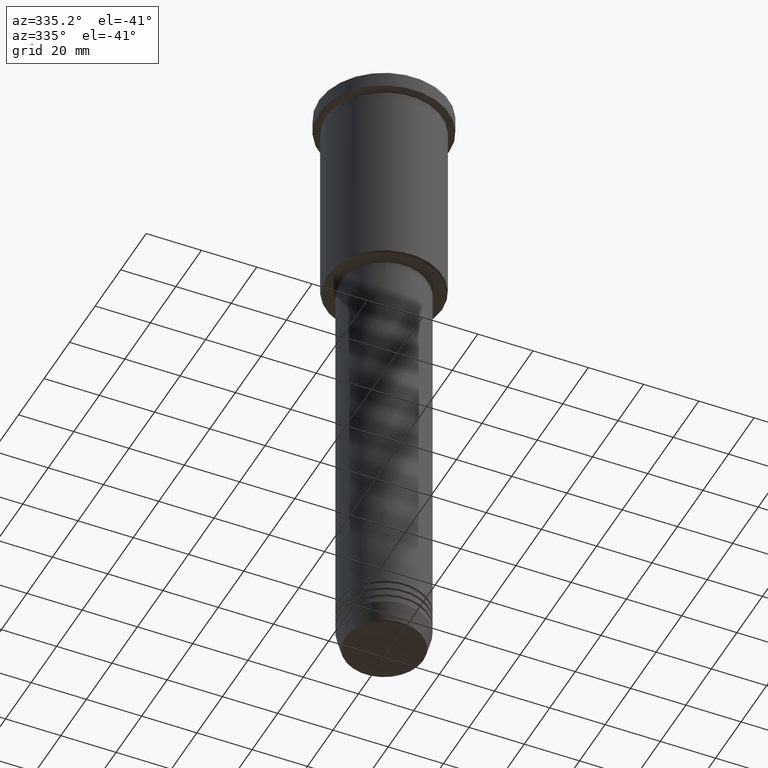
[diagram: clean part render]
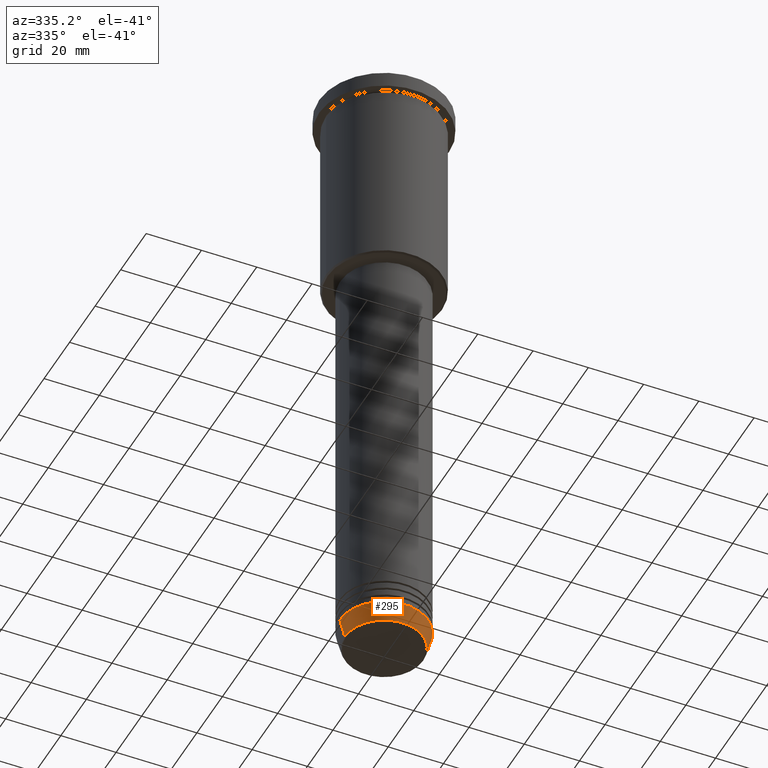
[diagram: same view with one face highlighted and labeled with its STEP entity id]
A machine part, auxiliary view. The second image highlights one B-rep face of the part: STEP entity #295.
In plain terms, the highlighted conical surface has half-angle 15 deg.
Its self-contained STEP definition (entity closure, byte-faithful):
#16 = CARTESIAN_POINT ( 'NONE',  ( -14.22365507213719660, 1.850665122131324126E-15, -230.6294095225512706 ) ) ;
#19 = CARTESIAN_POINT ( 'NONE',  ( -16.00000000000000000, 1.959434878635765131E-15, -224.0000000000000000 ) ) ;
#25 = AXIS2_PLACEMENT_3D ( 'NONE', #885, #590, #868 ) ;
#51 = VECTOR ( 'NONE', #360, 1000.000000000000000 ) ;
#87 = ORIENTED_EDGE ( 'NONE', *, *, #804, .T. ) ;
#207 = ORIENTED_EDGE ( 'NONE', *, *, #339, .F. ) ;
#294 = CARTESIAN_POINT ( 'NONE',  ( 14.22365507213719660, 0.000000000000000000, -230.6294095225512706 ) ) ;
#295 = ADVANCED_FACE ( 'NONE', ( #594 ), #1154, .T. ) ;
#339 = EDGE_CURVE ( 'NONE', #991, #793, #1091, .T. ) ;
#360 = DIRECTION ( 'NONE',  ( 0.2588190451025213501, 0.000000000000000000, 0.9659258262890680902 ) ) ;
#437 = LINE ( 'NONE', #1101, #51 ) ;
#450 = CARTESIAN_POINT ( 'NONE',  ( -16.00000000000000000, 1.959434878635765131E-15, -224.0000000000000000 ) ) ;
#496 = CARTESIAN_POINT ( 'NONE',  ( 16.00000000000000000, 0.000000000000000000, -224.0000000000000000 ) ) ;
#530 = CIRCLE ( 'NONE', #25, 16.00000000000000000 ) ;
#566 = DIRECTION ( 'NONE',  ( -0.000000000000000000, -0.000000000000000000, 1.000000000000000000 ) ) ;
#590 = DIRECTION ( 'NONE',  ( -0.000000000000000000, -0.000000000000000000, 1.000000000000000000 ) ) ;
#594 = FACE_OUTER_BOUND ( 'NONE', #630, .T. ) ;
#597 = VECTOR ( 'NONE', #911, 1000.000000000000000 ) ;
#620 = CIRCLE ( 'NONE', #1143, 14.22365507213719660 ) ;
#630 = EDGE_LOOP ( 'NONE', ( #207, #840, #87, #1182 ) ) ;
#717 = VERTEX_POINT ( 'NONE', #496 ) ;
#764 = CARTESIAN_POINT ( 'NONE',  ( 0.000000000000000000, 0.000000000000000000, -230.6294095225512706 ) ) ;
#783 = DIRECTION ( 'NONE',  ( -0.000000000000000000, -0.000000000000000000, 1.000000000000000000 ) ) ;
#793 = VERTEX_POINT ( 'NONE', #450 ) ;
#804 = EDGE_CURVE ( 'NONE', #997, #717, #437, .T. ) ;
#835 = DIRECTION ( 'NONE',  ( 1.000000000000000000, 0.000000000000000000, 0.000000000000000000 ) ) ;
#840 = ORIENTED_EDGE ( 'NONE', *, *, #951, .T. ) ;
#868 = DIRECTION ( 'NONE',  ( 1.000000000000000000, 0.000000000000000000, 0.000000000000000000 ) ) ;
#877 = CARTESIAN_POINT ( 'NONE',  ( 0.000000000000000000, 0.000000000000000000, -224.0000000000000000 ) ) ;
#885 = CARTESIAN_POINT ( 'NONE',  ( 0.000000000000000000, 0.000000000000000000, -224.0000000000000000 ) ) ;
#911 = DIRECTION ( 'NONE',  ( -0.2588190451025213501, 3.169619151431772337E-17, 0.9659258262890680902 ) ) ;
#951 = EDGE_CURVE ( 'NONE', #991, #997, #620, .T. ) ;
#960 = AXIS2_PLACEMENT_3D ( 'NONE', #877, #783, #1149 ) ;
#991 = VERTEX_POINT ( 'NONE', #16 ) ;
#997 = VERTEX_POINT ( 'NONE', #294 ) ;
#1081 = EDGE_CURVE ( 'NONE', #793, #717, #530, .T. ) ;
#1091 = LINE ( 'NONE', #19, #597 ) ;
#1101 = CARTESIAN_POINT ( 'NONE',  ( 16.00000000000000000, 0.000000000000000000, -224.0000000000000000 ) ) ;
#1143 = AXIS2_PLACEMENT_3D ( 'NONE', #764, #566, #835 ) ;
#1149 = DIRECTION ( 'NONE',  ( 1.000000000000000000, 0.000000000000000000, 0.000000000000000000 ) ) ;
#1154 = CONICAL_SURFACE ( 'NONE', #960, 16.00000000000000000, 0.2617993877991500740 ) ;
#1182 = ORIENTED_EDGE ( 'NONE', *, *, #1081, .F. ) ;